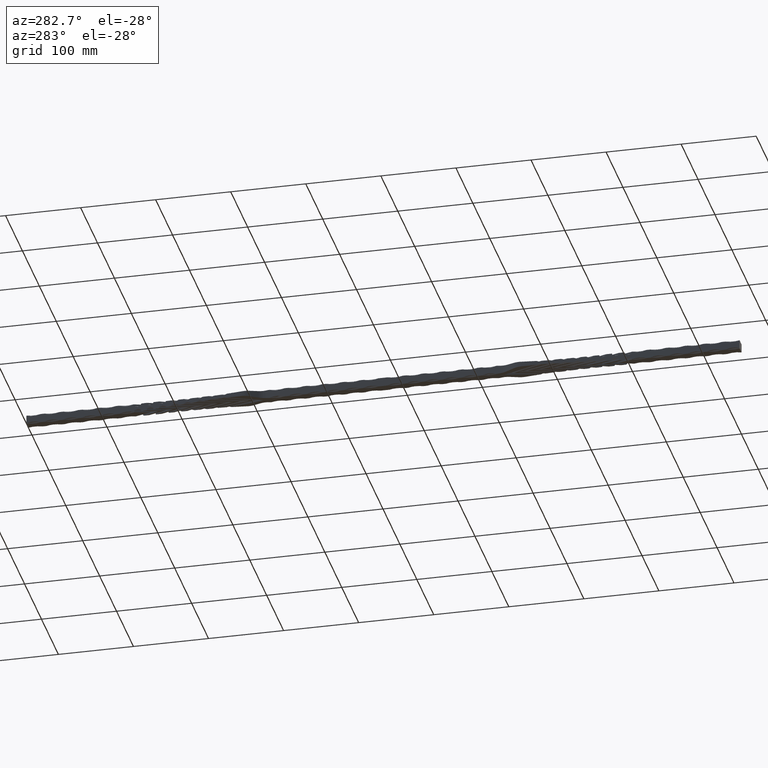
[diagram: clean part render]
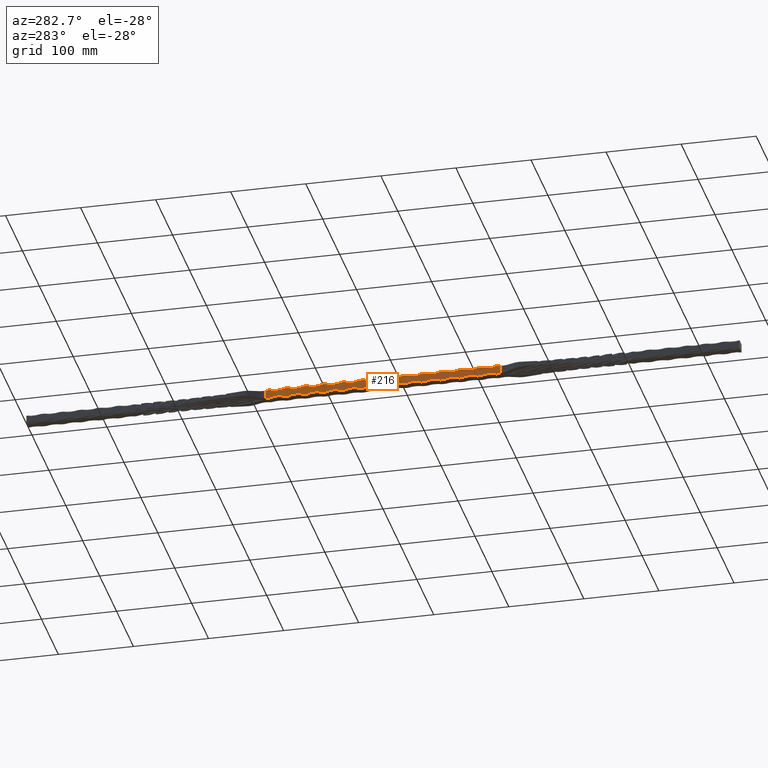
[diagram: same view with one face highlighted and labeled with its STEP entity id]
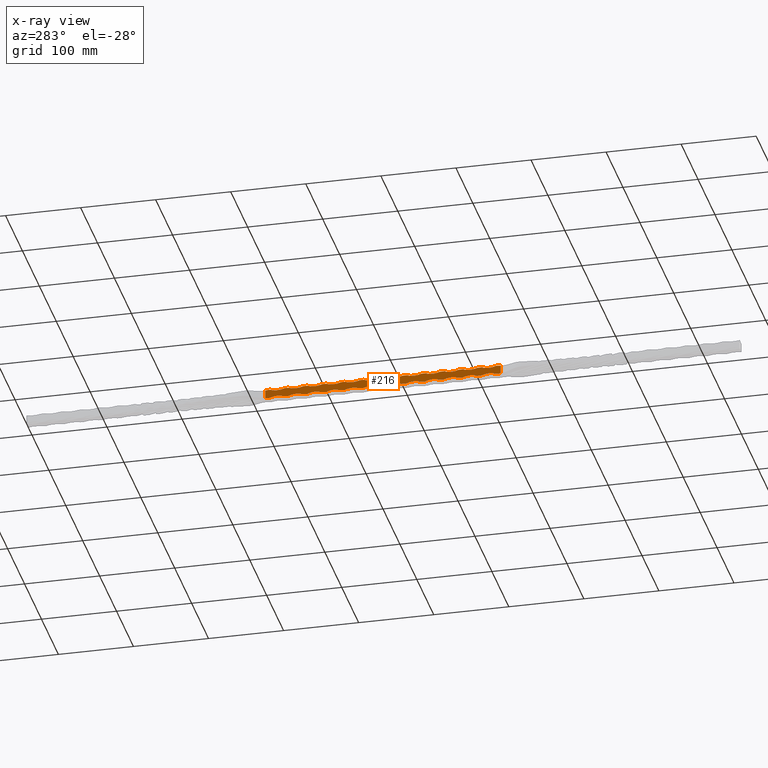
[diagram: x-ray of the same camera — body ghosted, the highlighted face saturated]
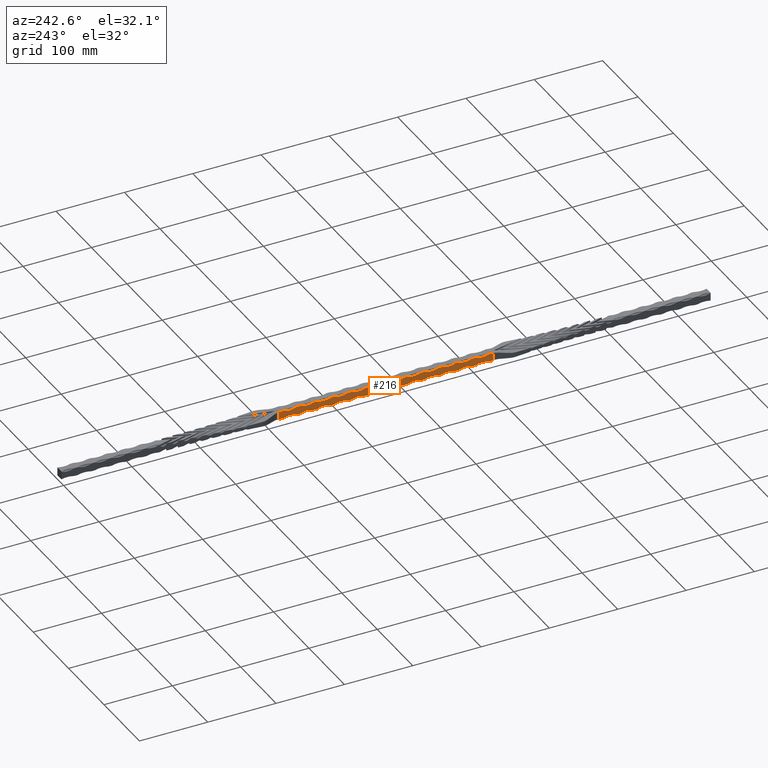
[diagram: same view with one face highlighted and labeled with its STEP entity id]
A machine part, auxiliary view. The second image highlights one B-rep face of the part: STEP entity #216.
The next image is the same camera in x-ray: the body ghosted, the highlighted face saturated — about 0% of this face is hidden behind the body in this view.
A second angle (auxiliary view) of the same face is appended — the face is thin or edge-on in the first view.
In plain terms, the highlighted planar face has unit normal (1, 0, -0).
Its self-contained STEP definition (entity closure, byte-faithful):
#44 = ORIENTED_EDGE ( 'NONE', *, *, #33351, .F. ) ;
#108 = DIRECTION ( 'NONE',  ( -1.000000000000000000, -0.000000000000000000, -1.445602896647339410E-16 ) ) ;
#201 = VERTEX_POINT ( 'NONE', #8883 ) ;
#216 = ADVANCED_FACE ( 'NONE', ( #1748 ), #5908, .F. ) ;
#230 = DIRECTION ( 'NONE',  ( -1.440896431496764621E-16, 0.000000000000000000, 1.000000000000000000 ) ) ;
#241 = VERTEX_POINT ( 'NONE', #9008 ) ;
#283 = VECTOR ( 'NONE', #11474, 1000.000000000000000 ) ;
#284 = DIRECTION ( 'NONE',  ( -1.000000000000000000, -0.000000000000000000, 1.445602896647339410E-16 ) ) ;
#314 = CARTESIAN_POINT ( 'NONE',  ( -5.999999999999998224, 531.0399999999999636, 5.999999999999999112 ) ) ;
#319 = LINE ( 'NONE', #2899, #21761 ) ;
#478 = CIRCLE ( 'NONE', #21364, 26.00000000000000711 ) ;
#542 = CARTESIAN_POINT ( 'NONE',  ( -6.000000000000001776, 657.0799999999999272, -5.999999999999170441 ) ) ;
#636 = CARTESIAN_POINT ( 'NONE',  ( -5.999999999999998224, 531.0399999999999636, -5.999999999999999112 ) ) ;
#655 = VECTOR ( 'NONE', #32901, 1000.000000000000000 ) ;
#663 = AXIS2_PLACEMENT_3D ( 'NONE', #2668, #17138, #19885 ) ;
#914 = VERTEX_POINT ( 'NONE', #27845 ) ;
#944 = EDGE_CURVE ( 'NONE', #30580, #35681, #319, .T. ) ;
#975 = ORIENTED_EDGE ( 'NONE', *, *, #15747, .F. ) ;
#1005 = DIRECTION ( 'NONE',  ( 1.000000000000000000, 0.000000000000000000, -1.445602896647339410E-16 ) ) ;
#1009 = EDGE_CURVE ( 'NONE', #19629, #6293, #3938, .T. ) ;
#1151 = DIRECTION ( 'NONE',  ( -1.000000000000000000, -0.000000000000000000, 1.445602896647339410E-16 ) ) ;
#1300 = EDGE_CURVE ( 'NONE', #11902, #13717, #29770, .T. ) ;
#1317 = LINE ( 'NONE', #2646, #28523 ) ;
#1373 = EDGE_CURVE ( 'NONE', #17051, #32781, #28448, .T. ) ;
#1446 = VECTOR ( 'NONE', #27926, 1000.000000000000000 ) ;
#1519 = CARTESIAN_POINT ( 'NONE',  ( -6.000000000000001776, 505.0000000000000000, 5.999999999998961719 ) ) ;
#1736 = DIRECTION ( 'NONE',  ( -1.334402673828312846E-16, 0.000000000000000000, -1.000000000000000000 ) ) ;
#1748 = FACE_OUTER_BOUND ( 'NONE', #24152, .T. ) ;
#1795 = DIRECTION ( 'NONE',  ( -1.334402673828312846E-16, 0.000000000000000000, 1.000000000000000000 ) ) ;
#1806 = EDGE_CURVE ( 'NONE', #26964, #20268, #28883, .T. ) ;
#2157 = ORIENTED_EDGE ( 'NONE', *, *, #21630, .T. ) ;
#2250 = EDGE_CURVE ( 'NONE', #14305, #32589, #33758, .T. ) ;
#2293 = CARTESIAN_POINT ( 'NONE',  ( -6.000000000000001776, 505.0000000000000000, -5.999999999998961719 ) ) ;
#2504 = CARTESIAN_POINT ( 'NONE',  ( -6.000000000000000000, 684.0696371787469161, -5.846788709385708493 ) ) ;
#2612 = DIRECTION ( 'NONE',  ( -1.445602896647339163E-16, 0.000000000000000000, -1.000000000000000000 ) ) ;
#2621 = DIRECTION ( 'NONE',  ( -1.334402673828312846E-16, 0.000000000000000000, -1.000000000000000000 ) ) ;
#2645 = LINE ( 'NONE', #636, #5343 ) ;
#2646 = CARTESIAN_POINT ( 'NONE',  ( -5.999999999999998224, 531.0399999999999636, -5.999999999999999112 ) ) ;
#2668 = CARTESIAN_POINT ( 'NONE',  ( -5.999999999999998224, 572.0799999999999272, 29.99999999999903011 ) ) ;
#2849 = CARTESIAN_POINT ( 'NONE',  ( -5.999999999999998224, 490.0000000000000568, -29.99999999999903011 ) ) ;
#2852 = CIRCLE ( 'NONE', #33058, 30.00000000000000000 ) ;
#2857 = DIRECTION ( 'NONE',  ( 0.000000000000000000, 1.000000000000000000, 0.000000000000000000 ) ) ;
#2886 = CARTESIAN_POINT ( 'NONE',  ( -5.999999999999998224, 572.0799999999999272, -29.99999999999903011 ) ) ;
#2899 = CARTESIAN_POINT ( 'NONE',  ( -5.999999999999998224, 531.0399999999999636, -5.999999999999999112 ) ) ;
#3035 = CIRCLE ( 'NONE', #18848, 26.00000000000000711 ) ;
#3322 = EDGE_CURVE ( 'NONE', #20268, #15836, #31462, .T. ) ;
#3380 = ORIENTED_EDGE ( 'NONE', *, *, #34767, .T. ) ;
#3535 = ORIENTED_EDGE ( 'NONE', *, *, #10337, .T. ) ;
#3656 = AXIS2_PLACEMENT_3D ( 'NONE', #24741, #7910, #16617 ) ;
#3761 = ORIENTED_EDGE ( 'NONE', *, *, #35702, .F. ) ;
#3801 = VERTEX_POINT ( 'NONE', #8747 ) ;
#3835 = CARTESIAN_POINT ( 'NONE',  ( -6.000000000000001776, 405.0000000000000000, 5.999999999999170441 ) ) ;
#3857 = CARTESIAN_POINT ( 'NONE',  ( -5.999999999999998224, 531.0399999999999636, -5.999999999999999112 ) ) ;
#3938 = CIRCLE ( 'NONE', #30058, 26.00000000000000711 ) ;
#3961 = CARTESIAN_POINT ( 'NONE',  ( -6.000000000000005329, 681.0415678702127025, -24.00000000000002132 ) ) ;
#4172 = CARTESIAN_POINT ( 'NONE',  ( -6.000000000000001776, 500.0000000000024443, -6.000000000000012434 ) ) ;
#4265 = ORIENTED_EDGE ( 'NONE', *, *, #21116, .T. ) ;
#4337 = ORIENTED_EDGE ( 'NONE', *, *, #4867, .T. ) ;
#4354 = CARTESIAN_POINT ( 'NONE',  ( -6.000000000000005329, 381.0384321297871679, 24.00000000000002132 ) ) ;
#4384 = LINE ( 'NONE', #12487, #32024 ) ;
#4400 = ORIENTED_EDGE ( 'NONE', *, *, #32803, .F. ) ;
#4401 = AXIS2_PLACEMENT_3D ( 'NONE', #33227, #4673, #1795 ) ;
#4443 = CARTESIAN_POINT ( 'NONE',  ( -5.999999999999998224, 622.0799999999998136, -29.99999999999913669 ) ) ;
#4509 = AXIS2_PLACEMENT_3D ( 'NONE', #33944, #108, #230 ) ;
#4552 = CARTESIAN_POINT ( 'NONE',  ( -6.000000000000001776, 525.0000000000025011, 6.000000000000012434 ) ) ;
#4673 = DIRECTION ( 'NONE',  ( 1.000000000000000000, 0.000000000000000000, 1.445602896647339410E-16 ) ) ;
#4703 = EDGE_CURVE ( 'NONE', #11209, #914, #9049, .T. ) ;
#4714 = DIRECTION ( 'NONE',  ( -1.334402673828312846E-16, 0.000000000000000000, -1.000000000000000000 ) ) ;
#4723 = DIRECTION ( 'NONE',  ( -1.445602896647339163E-16, 0.000000000000000000, 1.000000000000000000 ) ) ;
#4762 = DIRECTION ( 'NONE',  ( -1.334402673828312846E-16, 0.000000000000000000, 1.000000000000000000 ) ) ;
#4867 = EDGE_CURVE ( 'NONE', #35474, #26964, #20222, .T. ) ;
#4875 = ORIENTED_EDGE ( 'NONE', *, *, #32161, .F. ) ;
#4936 = CIRCLE ( 'NONE', #4509, 601.9598071232721850 ) ;
#4974 = VERTEX_POINT ( 'NONE', #16060 ) ;
#5182 = CIRCLE ( 'NONE', #34005, 26.00000000000000711 ) ;
#5224 = DIRECTION ( 'NONE',  ( -1.334402673828312846E-16, 0.000000000000000000, 1.000000000000000000 ) ) ;
#5343 = VECTOR ( 'NONE', #35086, 1000.000000000000000 ) ;
#5359 = VERTEX_POINT ( 'NONE', #1519 ) ;
#5385 = ORIENTED_EDGE ( 'NONE', *, *, #6035, .T. ) ;
#5512 = ORIENTED_EDGE ( 'NONE', *, *, #2250, .F. ) ;
#5536 = LINE ( 'NONE', #12760, #6006 ) ;
#5669 = CARTESIAN_POINT ( 'NONE',  ( -5.999999999999998224, 390.0000000000000000, 29.99999999999923972 ) ) ;
#5672 = EDGE_CURVE ( 'NONE', #241, #6411, #29090, .T. ) ;
#5755 = DIRECTION ( 'NONE',  ( -1.334402673828312846E-16, 8.540177112501202215E-15, 1.000000000000000000 ) ) ;
#5859 = CARTESIAN_POINT ( 'NONE',  ( -6.000000000000005329, 381.0384321297871679, -24.00000000000002132 ) ) ;
#5908 = PLANE ( 'NONE',  #11907 ) ;
#5976 = ORIENTED_EDGE ( 'NONE', *, *, #11859, .F. ) ;
#6006 = VECTOR ( 'NONE', #18477, 1000.000000000000000 ) ;
#6035 = EDGE_CURVE ( 'NONE', #10006, #33248, #28669, .T. ) ;
#6272 = ORIENTED_EDGE ( 'NONE', *, *, #20305, .F. ) ;
#6293 = VERTEX_POINT ( 'NONE', #20416 ) ;
#6296 = EDGE_CURVE ( 'NONE', #30000, #11902, #10380, .T. ) ;
#6333 = CARTESIAN_POINT ( 'NONE',  ( -6.000000000000001776, 582.0799999999999272, 5.999999999999014122 ) ) ;
#6411 = VERTEX_POINT ( 'NONE', #13714 ) ;
#6444 = CIRCLE ( 'NONE', #31189, 26.00000000000000711 ) ;
#6474 = VERTEX_POINT ( 'NONE', #34386 ) ;
#6530 = AXIS2_PLACEMENT_3D ( 'NONE', #5859, #28178, #2612 ) ;
#6570 = CARTESIAN_POINT ( 'NONE',  ( -6.000000000000001776, 557.0799999999999272, -5.999999999998961719 ) ) ;
#6684 = DIRECTION ( 'NONE',  ( -0.000000000000000000, 1.000000000000000000, -0.000000000000000000 ) ) ;
#6694 = AXIS2_PLACEMENT_3D ( 'NONE', #33418, #10724, #27432 ) ;
#6754 = ORIENTED_EDGE ( 'NONE', *, *, #22425, .T. ) ;
#6798 = CARTESIAN_POINT ( 'NONE',  ( -6.000000000000001776, 557.0799999999999272, 5.999999999998961719 ) ) ;
#7024 = CARTESIAN_POINT ( 'NONE',  ( -6.000000000000001776, 607.0799999999998136, -5.999999999999065636 ) ) ;
#7132 = CARTESIAN_POINT ( 'NONE',  ( -5.999999999999998224, 415.0000000000000568, 29.99999999999918643 ) ) ;
#7155 = LINE ( 'NONE', #30020, #21002 ) ;
#7253 = DIRECTION ( 'NONE',  ( -1.334402673828312846E-16, 0.000000000000000000, 1.000000000000000000 ) ) ;
#7321 = VERTEX_POINT ( 'NONE', #18008 ) ;
#7363 = VERTEX_POINT ( 'NONE', #26962 ) ;
#7681 = CARTESIAN_POINT ( 'NONE',  ( -6.000000000000001776, 607.0799999999998136, 5.999999999999065636 ) ) ;
#7700 = DIRECTION ( 'NONE',  ( -1.334402673828312846E-16, 0.000000000000000000, -1.000000000000000000 ) ) ;
#7787 = LINE ( 'NONE', #21171, #655 ) ;
#7798 = ORIENTED_EDGE ( 'NONE', *, *, #30167, .F. ) ;
#7910 = DIRECTION ( 'NONE',  ( -1.000000000000000000, 0.000000000000000000, -1.445602896647339410E-16 ) ) ;
#7968 = ORIENTED_EDGE ( 'NONE', *, *, #27096, .F. ) ;
#8000 = DIRECTION ( 'NONE',  ( 1.000000000000000000, -0.000000000000000000, 1.445602896647339410E-16 ) ) ;
#8517 = CARTESIAN_POINT ( 'NONE',  ( -6.000000000000001776, 657.0799999999999272, 5.999999999999170441 ) ) ;
#8578 = VECTOR ( 'NONE', #14226, 1000.000000000000000 ) ;
#8683 = VECTOR ( 'NONE', #6684, 1000.000000000000000 ) ;
#8747 = CARTESIAN_POINT ( 'NONE',  ( -6.000000000000001776, 425.0000000000019895, -6.000000000000012434 ) ) ;
#8759 = DIRECTION ( 'NONE',  ( -1.000000000000000000, -0.000000000000000000, 1.445602896647339410E-16 ) ) ;
#8858 = ORIENTED_EDGE ( 'NONE', *, *, #16188, .T. ) ;
#8882 = AXIS2_PLACEMENT_3D ( 'NONE', #26331, #26212, #29107 ) ;
#8883 = CARTESIAN_POINT ( 'NONE',  ( -6.000000000000001776, 475.0000000000022737, -6.000000000000012434 ) ) ;
#8927 = CARTESIAN_POINT ( 'NONE',  ( -5.999999999999998224, 531.0399999999999636, -5.999999999999999112 ) ) ;
#8932 = EDGE_CURVE ( 'NONE', #28909, #16998, #22700, .T. ) ;
#8982 = CARTESIAN_POINT ( 'NONE',  ( -5.999999999999998224, 531.0399999999999636, 5.999999999999999112 ) ) ;
#8995 = ORIENTED_EDGE ( 'NONE', *, *, #944, .F. ) ;
#9008 = CARTESIAN_POINT ( 'NONE',  ( -6.000000000000000000, 378.0103628212529543, -5.846788709385708493 ) ) ;
#9018 = CIRCLE ( 'NONE', #31517, 26.00000000000000711 ) ;
#9049 = LINE ( 'NONE', #32951, #15306 ) ;
#9061 = DIRECTION ( 'NONE',  ( -0.000000000000000000, -1.000000000000000000, 0.000000000000000000 ) ) ;
#9205 = EDGE_CURVE ( 'NONE', #13336, #19629, #4384, .T. ) ;
#9495 = DIRECTION ( 'NONE',  ( -0.000000000000000000, -1.000000000000000000, -0.000000000000000000 ) ) ;
#9568 = CARTESIAN_POINT ( 'NONE',  ( -5.999999999999992895, 374.2926937765808475, -5.481267690345847932 ) ) ;
#9731 = EDGE_CURVE ( 'NONE', #17648, #6293, #24150, .T. ) ;
#9828 = VERTEX_POINT ( 'NONE', #30361 ) ;
#9833 = DIRECTION ( 'NONE',  ( -0.000000000000000000, 1.000000000000000000, -0.000000000000000000 ) ) ;
#9843 = CARTESIAN_POINT ( 'NONE',  ( -5.999999999999998224, 465.0000000000000000, -29.99999999999908340 ) ) ;
#9966 = DIRECTION ( 'NONE',  ( -1.334402673828312846E-16, 0.000000000000000000, 1.000000000000000000 ) ) ;
#9971 = EDGE_CURVE ( 'NONE', #3801, #15351, #35310, .T. ) ;
#10006 = VERTEX_POINT ( 'NONE', #25365 ) ;
#10049 = CARTESIAN_POINT ( 'NONE',  ( -5.999999999999998224, 490.0000000000000568, 29.99999999999903011 ) ) ;
#10270 = CARTESIAN_POINT ( 'NONE',  ( -5.999999999999998224, 440.0000000000000568, -29.99999999999913669 ) ) ;
#10337 = EDGE_CURVE ( 'NONE', #21407, #7363, #27705, .T. ) ;
#10380 = LINE ( 'NONE', #8927, #18837 ) ;
#10384 = CARTESIAN_POINT ( 'NONE',  ( -6.000000000000001776, 480.0000000000000568, 5.999999999999014122 ) ) ;
#10408 = VERTEX_POINT ( 'NONE', #10384 ) ;
#10611 = VERTEX_POINT ( 'NONE', #28834 ) ;
#10724 = DIRECTION ( 'NONE',  ( 1.000000000000000000, 0.000000000000000000, -1.445602896647339410E-16 ) ) ;
#10789 = DIRECTION ( 'NONE',  ( 1.445602896647339410E-16, 7.239911254239001197E-32, 1.000000000000000000 ) ) ;
#10874 = CIRCLE ( 'NONE', #25892, 26.00000000000000711 ) ;
#10884 = VECTOR ( 'NONE', #2857, 1000.000000000000000 ) ;
#10925 = DIRECTION ( 'NONE',  ( -1.334402673828312846E-16, 0.000000000000000000, 1.000000000000000000 ) ) ;
#11056 = CARTESIAN_POINT ( 'NONE',  ( -6.000000000000001776, 632.0799999999998136, 5.999999999999118039 ) ) ;
#11084 = EDGE_CURVE ( 'NONE', #10408, #14305, #27236, .T. ) ;
#11128 = ORIENTED_EDGE ( 'NONE', *, *, #9971, .T. ) ;
#11209 = VERTEX_POINT ( 'NONE', #3835 ) ;
#11261 = CARTESIAN_POINT ( 'NONE',  ( -5.999999999999998224, 531.0399999999999636, -5.999999999999999112 ) ) ;
#11347 = EDGE_CURVE ( 'NONE', #23695, #31137, #28094, .T. ) ;
#11404 = DIRECTION ( 'NONE',  ( 0.000000000000000000, 1.000000000000000000, 0.000000000000000000 ) ) ;
#11474 = DIRECTION ( 'NONE',  ( -0.000000000000000000, -1.000000000000000000, -0.000000000000000000 ) ) ;
#11484 = LINE ( 'NONE', #34443, #25724 ) ;
#11654 = VERTEX_POINT ( 'NONE', #11056 ) ;
#11739 = EDGE_CURVE ( 'NONE', #7321, #17648, #15187, .T. ) ;
#11752 = CARTESIAN_POINT ( 'NONE',  ( -6.000000000000001776, 537.0799999999974261, 6.000000000000012434 ) ) ;
#11859 = EDGE_CURVE ( 'NONE', #17804, #10408, #12063, .T. ) ;
#11902 = VERTEX_POINT ( 'NONE', #4172 ) ;
#11907 = AXIS2_PLACEMENT_3D ( 'NONE', #19873, #28855, #14616 ) ;
#12001 = DIRECTION ( 'NONE',  ( -0.000000000000000000, -1.000000000000000000, -0.000000000000000000 ) ) ;
#12063 = CIRCLE ( 'NONE', #35599, 26.00000000000000711 ) ;
#12102 = CARTESIAN_POINT ( 'NONE',  ( -5.999999999999998224, 647.0799999999999272, 29.99999999999918643 ) ) ;
#12198 = VECTOR ( 'NONE', #12001, 1000.000000000000000 ) ;
#12214 = ORIENTED_EDGE ( 'NONE', *, *, #34447, .F. ) ;
#12342 = CARTESIAN_POINT ( 'NONE',  ( -5.999999999999998224, 531.0399999999999636, -5.999999999999999112 ) ) ;
#12475 = CARTESIAN_POINT ( 'NONE',  ( -6.000000000000001776, 525.0000000000025011, -6.000000000000012434 ) ) ;
#12487 = CARTESIAN_POINT ( 'NONE',  ( -5.999999999999998224, 531.0399999999999636, 5.999999999999999112 ) ) ;
#12554 = DIRECTION ( 'NONE',  ( -1.000000000000000000, 0.000000000000000000, -1.445602896647339410E-16 ) ) ;
#12588 = DIRECTION ( 'NONE',  ( -0.000000000000000000, 1.000000000000000000, -0.000000000000000000 ) ) ;
#12639 = VERTEX_POINT ( 'NONE', #6570 ) ;
#12694 = EDGE_CURVE ( 'NONE', #7363, #3801, #28972, .T. ) ;
#12760 = CARTESIAN_POINT ( 'NONE',  ( -5.999999999999998224, 531.0399999999999636, -5.999999999999999112 ) ) ;
#12933 = CIRCLE ( 'NONE', #4401, 26.00000000000000711 ) ;
#13085 = DIRECTION ( 'NONE',  ( 1.000000000000000000, 0.000000000000000000, 1.445602896647339410E-16 ) ) ;
#13283 = ORIENTED_EDGE ( 'NONE', *, *, #12694, .T. ) ;
#13292 = EDGE_CURVE ( 'NONE', #32781, #5359, #3035, .T. ) ;
#13305 = VERTEX_POINT ( 'NONE', #28588 ) ;
#13336 = VERTEX_POINT ( 'NONE', #8517 ) ;
#13360 = DIRECTION ( 'NONE',  ( -1.440896431496764621E-16, 0.000000000000000000, 1.000000000000000000 ) ) ;
#13714 = CARTESIAN_POINT ( 'NONE',  ( -6.000000000000001776, 380.0399809717480366, -5.983380317852914132 ) ) ;
#13717 = VERTEX_POINT ( 'NONE', #17208 ) ;
#13775 = EDGE_CURVE ( 'NONE', #17407, #13336, #29795, .T. ) ;
#13862 = ORIENTED_EDGE ( 'NONE', *, *, #3322, .T. ) ;
#13903 = CIRCLE ( 'NONE', #29302, 26.00000000000000711 ) ;
#13937 = LINE ( 'NONE', #8982, #12198 ) ;
#14226 = DIRECTION ( 'NONE',  ( -0.000000000000000000, -1.000000000000000000, 0.000000000000000000 ) ) ;
#14235 = ORIENTED_EDGE ( 'NONE', *, *, #16866, .T. ) ;
#14236 = DIRECTION ( 'NONE',  ( -1.334402673828312846E-16, 0.000000000000000000, -1.000000000000000000 ) ) ;
#14298 = CARTESIAN_POINT ( 'NONE',  ( -6.000000000000001776, 455.0000000000000000, 5.999999999999065636 ) ) ;
#14305 = VERTEX_POINT ( 'NONE', #18024 ) ;
#14317 = CARTESIAN_POINT ( 'NONE',  ( -6.000000000000001776, 450.0000000000021600, -6.000000000000012434 ) ) ;
#14458 = DIRECTION ( 'NONE',  ( -1.334402673828312846E-16, 0.000000000000000000, -1.000000000000000000 ) ) ;
#14616 = DIRECTION ( 'NONE',  ( -1.445602896647339410E-16, 0.000000000000000000, -1.000000000000000000 ) ) ;
#14796 = CARTESIAN_POINT ( 'NONE',  ( -5.999999999999998224, 531.0399999999999636, -5.999999999999999112 ) ) ;
#14878 = CARTESIAN_POINT ( 'NONE',  ( -6.000000000000001776, 562.0799999999974261, 6.000000000000012434 ) ) ;
#14898 = AXIS2_PLACEMENT_3D ( 'NONE', #21442, #24336, #7253 ) ;
#14941 = AXIS2_PLACEMENT_3D ( 'NONE', #19472, #8000, #13360 ) ;
#14997 = EDGE_CURVE ( 'NONE', #13305, #15243, #5182, .T. ) ;
#15153 = CARTESIAN_POINT ( 'NONE',  ( -6.000000000000005329, 681.0415678702127025, 24.00000000000002132 ) ) ;
#15187 = CIRCLE ( 'NONE', #27440, 601.9598071232721850 ) ;
#15243 = VERTEX_POINT ( 'NONE', #20155 ) ;
#15293 = CARTESIAN_POINT ( 'NONE',  ( -5.999999999999998224, 531.0399999999999636, 5.999999999999999112 ) ) ;
#15306 = VECTOR ( 'NONE', #15612, 1000.000000000000000 ) ;
#15351 = VERTEX_POINT ( 'NONE', #35696 ) ;
#15432 = DIRECTION ( 'NONE',  ( -0.000000000000000000, -1.000000000000000000, 0.000000000000000000 ) ) ;
#15612 = DIRECTION ( 'NONE',  ( -0.000000000000000000, -1.000000000000000000, -0.000000000000000000 ) ) ;
#15650 = DIRECTION ( 'NONE',  ( -1.334402673828312846E-16, -8.540177112501202215E-15, 1.000000000000000000 ) ) ;
#15703 = VECTOR ( 'NONE', #24257, 1000.000000000000000 ) ;
#15747 = EDGE_CURVE ( 'NONE', #28909, #7321, #7787, .T. ) ;
#15836 = VERTEX_POINT ( 'NONE', #21532 ) ;
#15916 = DIRECTION ( 'NONE',  ( -1.334402673828312846E-16, 0.000000000000000000, 1.000000000000000000 ) ) ;
#16060 = CARTESIAN_POINT ( 'NONE',  ( -6.000000000000001776, 537.0799999999974261, -6.000000000000012434 ) ) ;
#16063 = CARTESIAN_POINT ( 'NONE',  ( -6.000000000000001776, 662.0799999999979946, 6.000000000000012434 ) ) ;
#16169 = CARTESIAN_POINT ( 'NONE',  ( -5.999999999999998224, 465.0000000000000000, 29.99999999999908340 ) ) ;
#16188 = EDGE_CURVE ( 'NONE', #16998, #6474, #2852, .T. ) ;
#16253 = ORIENTED_EDGE ( 'NONE', *, *, #32703, .T. ) ;
#16311 = VERTEX_POINT ( 'NONE', #32860 ) ;
#16456 = AXIS2_PLACEMENT_3D ( 'NONE', #4443, #33000, #15916 ) ;
#16591 = LINE ( 'NONE', #14796, #21483 ) ;
#16598 = CARTESIAN_POINT ( 'NONE',  ( -6.000000000000001776, 500.0000000000024443, 6.000000000000012434 ) ) ;
#16617 = DIRECTION ( 'NONE',  ( -1.334402673828312846E-16, 0.000000000000000000, 1.000000000000000000 ) ) ;
#16693 = ORIENTED_EDGE ( 'NONE', *, *, #20324, .T. ) ;
#16740 = LINE ( 'NONE', #33514, #21201 ) ;
#16866 = EDGE_CURVE ( 'NONE', #23656, #11654, #10874, .T. ) ;
#16998 = VERTEX_POINT ( 'NONE', #2504 ) ;
#17051 = VERTEX_POINT ( 'NONE', #11752 ) ;
#17068 = CARTESIAN_POINT ( 'NONE',  ( -5.999999999999998224, 531.0399999999999636, -5.999999999999999112 ) ) ;
#17138 = DIRECTION ( 'NONE',  ( 1.000000000000000000, 0.000000000000000000, -1.445602896647339410E-16 ) ) ;
#17159 = CARTESIAN_POINT ( 'NONE',  ( -6.000000000000001776, 632.0799999999998136, -5.999999999999118039 ) ) ;
#17208 = CARTESIAN_POINT ( 'NONE',  ( -6.000000000000001776, 480.0000000000000568, -5.999999999999014122 ) ) ;
#17253 = CARTESIAN_POINT ( 'NONE',  ( -6.000000000000001776, 582.0799999999999272, -5.999999999999014122 ) ) ;
#17407 = VERTEX_POINT ( 'NONE', #29013 ) ;
#17607 = DIRECTION ( 'NONE',  ( 1.000000000000000000, 0.000000000000000000, -1.445602896647339410E-16 ) ) ;
#17648 = VERTEX_POINT ( 'NONE', #25619 ) ;
#17804 = VERTEX_POINT ( 'NONE', #16598 ) ;
#17869 = CARTESIAN_POINT ( 'NONE',  ( -6.000000000000001776, 380.0399809717480366, 5.983380317852914132 ) ) ;
#17889 = EDGE_CURVE ( 'NONE', #15351, #10611, #31342, .T. ) ;
#17896 = ORIENTED_EDGE ( 'NONE', *, *, #11347, .T. ) ;
#17930 = LINE ( 'NONE', #32763, #34444 ) ;
#18008 = CARTESIAN_POINT ( 'NONE',  ( -5.999999999999992895, 687.7873062234190229, 5.481267690345847932 ) ) ;
#18024 = CARTESIAN_POINT ( 'NONE',  ( -6.000000000000001776, 475.0000000000022737, 6.000000000000012434 ) ) ;
#18150 = ORIENTED_EDGE ( 'NONE', *, *, #8932, .T. ) ;
#18151 = CARTESIAN_POINT ( 'NONE',  ( -5.999999999999992895, 687.7873062234190229, -5.481267690345847932 ) ) ;
#18395 = CARTESIAN_POINT ( 'NONE',  ( -5.999999999999998224, 672.0799999999999272, -29.99999999999923972 ) ) ;
#18477 = DIRECTION ( 'NONE',  ( 0.000000000000000000, 1.000000000000000000, 0.000000000000000000 ) ) ;
#18497 = EDGE_CURVE ( 'NONE', #35681, #18878, #13903, .T. ) ;
#18575 = AXIS2_PLACEMENT_3D ( 'NONE', #2849, #31162, #5224 ) ;
#18649 = AXIS2_PLACEMENT_3D ( 'NONE', #9843, #24406, #29785 ) ;
#18814 = DIRECTION ( 'NONE',  ( 1.000000000000000000, 0.000000000000000000, -1.445602896647339410E-16 ) ) ;
#18835 = ORIENTED_EDGE ( 'NONE', *, *, #21242, .T. ) ;
#18837 = VECTOR ( 'NONE', #9061, 1000.000000000000000 ) ;
#18848 = AXIS2_PLACEMENT_3D ( 'NONE', #22839, #8759, #14236 ) ;
#18878 = VERTEX_POINT ( 'NONE', #542 ) ;
#18943 = CIRCLE ( 'NONE', #24945, 26.00000000000000711 ) ;
#18951 = ORIENTED_EDGE ( 'NONE', *, *, #1373, .F. ) ;
#18975 = VERTEX_POINT ( 'NONE', #29128 ) ;
#18981 = ORIENTED_EDGE ( 'NONE', *, *, #11739, .F. ) ;
#19056 = CIRCLE ( 'NONE', #3656, 26.00000000000000711 ) ;
#19184 = ORIENTED_EDGE ( 'NONE', *, *, #1300, .T. ) ;
#19187 = ORIENTED_EDGE ( 'NONE', *, *, #33576, .F. ) ;
#19243 = CARTESIAN_POINT ( 'NONE',  ( -5.999999999999998224, 415.0000000000000568, -29.99999999999918643 ) ) ;
#19472 = CARTESIAN_POINT ( 'NONE',  ( -5.999999999999912959, 744.8288377427855949, -604.7323612010811758 ) ) ;
#19597 = ORIENTED_EDGE ( 'NONE', *, *, #9731, .F. ) ;
#19629 = VERTEX_POINT ( 'NONE', #16063 ) ;
#19873 = CARTESIAN_POINT ( 'NONE',  ( -6.000000000000000000, 531.0399999999999636, -6.000000000000000888 ) ) ;
#19885 = DIRECTION ( 'NONE',  ( -1.334402673828312846E-16, 8.540177112501202215E-15, -1.000000000000000000 ) ) ;
#19892 = ORIENTED_EDGE ( 'NONE', *, *, #26946, .T. ) ;
#20155 = CARTESIAN_POINT ( 'NONE',  ( -6.000000000000001776, 430.0000000000000568, 5.999999999999118039 ) ) ;
#20222 = LINE ( 'NONE', #27672, #1446 ) ;
#20268 = VERTEX_POINT ( 'NONE', #6333 ) ;
#20305 = EDGE_CURVE ( 'NONE', #23998, #30580, #25502, .T. ) ;
#20324 = EDGE_CURVE ( 'NONE', #11654, #17407, #17930, .T. ) ;
#20349 = AXIS2_PLACEMENT_3D ( 'NONE', #12102, #28934, #14458 ) ;
#20416 = CARTESIAN_POINT ( 'NONE',  ( -6.000000000000001776, 682.0400190282518906, 5.983380317852914132 ) ) ;
#20545 = CIRCLE ( 'NONE', #25211, 26.00000000000000711 ) ;
#20633 = ORIENTED_EDGE ( 'NONE', *, *, #28315, .F. ) ;
#20663 = VERTEX_POINT ( 'NONE', #7024 ) ;
#21002 = VECTOR ( 'NONE', #12588, 1000.000000000000000 ) ;
#21116 = EDGE_CURVE ( 'NONE', #17051, #35474, #478, .T. ) ;
#21171 = CARTESIAN_POINT ( 'NONE',  ( -5.999999999999998224, 687.7873062234191366, 6.000000000000002665 ) ) ;
#21201 = VECTOR ( 'NONE', #25383, 1000.000000000000000 ) ;
#21207 = ORIENTED_EDGE ( 'NONE', *, *, #13292, .F. ) ;
#21240 = DIRECTION ( 'NONE',  ( -1.334402673828312846E-16, 0.000000000000000000, -1.000000000000000000 ) ) ;
#21242 = EDGE_CURVE ( 'NONE', #15836, #30507, #20545, .T. ) ;
#21256 = DIRECTION ( 'NONE',  ( -1.000000000000000000, 0.000000000000000000, -1.445602896647339410E-16 ) ) ;
#21364 = AXIS2_PLACEMENT_3D ( 'NONE', #26691, #1005, #26444 ) ;
#21374 = CARTESIAN_POINT ( 'NONE',  ( -5.999999999999998224, 531.0399999999999636, -5.999999999999999112 ) ) ;
#21407 = VERTEX_POINT ( 'NONE', #14317 ) ;
#21442 = CARTESIAN_POINT ( 'NONE',  ( -5.999999999999998224, 547.0799999999999272, -29.99999999999898037 ) ) ;
#21483 = VECTOR ( 'NONE', #34765, 1000.000000000000000 ) ;
#21532 = CARTESIAN_POINT ( 'NONE',  ( -6.000000000000001776, 587.0799999999976535, 6.000000000000012434 ) ) ;
#21599 = EDGE_CURVE ( 'NONE', #30507, #23656, #7155, .T. ) ;
#21630 = EDGE_CURVE ( 'NONE', #4974, #30156, #25425, .T. ) ;
#21761 = VECTOR ( 'NONE', #34084, 1000.000000000000000 ) ;
#21878 = ORIENTED_EDGE ( 'NONE', *, *, #18497, .F. ) ;
#21934 = ORIENTED_EDGE ( 'NONE', *, *, #26313, .T. ) ;
#22114 = CARTESIAN_POINT ( 'NONE',  ( -5.999999999999998224, 374.2926937765807907, 6.000000000000002665 ) ) ;
#22425 = EDGE_CURVE ( 'NONE', #10611, #6411, #12933, .T. ) ;
#22700 = CIRCLE ( 'NONE', #14941, 601.9598071232721850 ) ;
#22824 = LINE ( 'NONE', #21374, #15703 ) ;
#22839 = CARTESIAN_POINT ( 'NONE',  ( -5.999999999999998224, 515.0000000000000000, 29.99999999999898037 ) ) ;
#22896 = AXIS2_PLACEMENT_3D ( 'NONE', #16169, #24788, #7700 ) ;
#23100 = ORIENTED_EDGE ( 'NONE', *, *, #5672, .F. ) ;
#23656 = VERTEX_POINT ( 'NONE', #29747 ) ;
#23695 = VERTEX_POINT ( 'NONE', #9568 ) ;
#23754 = ORIENTED_EDGE ( 'NONE', *, *, #6296, .T. ) ;
#23889 = DIRECTION ( 'NONE',  ( 1.000000000000000000, 0.000000000000000000, -1.445602896647339410E-16 ) ) ;
#23998 = VERTEX_POINT ( 'NONE', #32836 ) ;
#24035 = CIRCLE ( 'NONE', #6694, 601.9598071232721850 ) ;
#24150 = CIRCLE ( 'NONE', #34337, 30.00000000000000000 ) ;
#24152 = EDGE_LOOP ( 'NONE', ( #3380, #5385, #28785, #28399, #44, #4875, #31890, #24500, #5512, #29409, #5976, #26985, #21207, #18951, #4265, #4337, #28798, #13862, #18835, #31270, #14235, #16693, #32724, #31336, #26838, #19597, #18981, #975, #18150, #8858, #29699, #12214, #21878, #8995, #6272, #7798, #3761, #4400, #25993, #7968, #20633, #2157, #19892, #23754, #19184, #31753, #21934, #16253, #3535, #13283, #11128, #24939, #6754, #23100, #19187, #17896 ) ) ;
#24257 = DIRECTION ( 'NONE',  ( 0.000000000000000000, 1.000000000000000000, 0.000000000000000000 ) ) ;
#24326 = EDGE_CURVE ( 'NONE', #32589, #13305, #11484, .T. ) ;
#24336 = DIRECTION ( 'NONE',  ( -1.000000000000000000, 0.000000000000000000, -1.445602896647339410E-16 ) ) ;
#24406 = DIRECTION ( 'NONE',  ( 1.000000000000000000, 0.000000000000000000, 1.445602896647339410E-16 ) ) ;
#24500 = ORIENTED_EDGE ( 'NONE', *, *, #24326, .F. ) ;
#24741 = CARTESIAN_POINT ( 'NONE',  ( -5.999999999999998224, 597.0799999999998136, -29.99999999999908340 ) ) ;
#24788 = DIRECTION ( 'NONE',  ( -1.000000000000000000, -0.000000000000000000, 1.445602896647339410E-16 ) ) ;
#24926 = AXIS2_PLACEMENT_3D ( 'NONE', #4354, #13085, #4723 ) ;
#24939 = ORIENTED_EDGE ( 'NONE', *, *, #17889, .T. ) ;
#24945 = AXIS2_PLACEMENT_3D ( 'NONE', #5669, #1151, #32099 ) ;
#25211 = AXIS2_PLACEMENT_3D ( 'NONE', #35942, #18814, #1736 ) ;
#25365 = CARTESIAN_POINT ( 'NONE',  ( -6.000000000000000000, 378.0103628212529543, 5.846788709385708493 ) ) ;
#25383 = DIRECTION ( 'NONE',  ( -0.000000000000000000, -1.000000000000000000, -0.000000000000000000 ) ) ;
#25425 = LINE ( 'NONE', #3857, #32571 ) ;
#25430 = DIRECTION ( 'NONE',  ( 1.000000000000000000, 0.000000000000000000, -1.445602896647339410E-16 ) ) ;
#25494 = CARTESIAN_POINT ( 'NONE',  ( -5.999999999999912959, 744.8288377427855949, 604.7323612010811758 ) ) ;
#25502 = CIRCLE ( 'NONE', #16456, 26.00000000000000711 ) ;
#25619 = CARTESIAN_POINT ( 'NONE',  ( -6.000000000000000000, 684.0696371787469161, 5.846788709385708493 ) ) ;
#25724 = VECTOR ( 'NONE', #9495, 1000.000000000000000 ) ;
#25741 = AXIS2_PLACEMENT_3D ( 'NONE', #10270, #27833, #4762 ) ;
#25892 = AXIS2_PLACEMENT_3D ( 'NONE', #34191, #25430, #2621 ) ;
#25893 = CARTESIAN_POINT ( 'NONE',  ( -5.999999999999998224, 531.0399999999999636, 5.999999999999999112 ) ) ;
#25908 = CARTESIAN_POINT ( 'NONE',  ( -6.000000000000001776, 455.0000000000000000, -5.999999999999065636 ) ) ;
#25993 = ORIENTED_EDGE ( 'NONE', *, *, #29743, .F. ) ;
#26212 = DIRECTION ( 'NONE',  ( 1.000000000000000000, 0.000000000000000000, 1.445602896647339410E-16 ) ) ;
#26313 = EDGE_CURVE ( 'NONE', #201, #34988, #33259, .T. ) ;
#26331 = CARTESIAN_POINT ( 'NONE',  ( -5.999999999999998224, 515.0000000000000000, -29.99999999999898037 ) ) ;
#26444 = DIRECTION ( 'NONE',  ( -1.334402673828312846E-16, 0.000000000000000000, -1.000000000000000000 ) ) ;
#26691 = CARTESIAN_POINT ( 'NONE',  ( -5.999999999999998224, 547.0799999999999272, 29.99999999999898037 ) ) ;
#26838 = ORIENTED_EDGE ( 'NONE', *, *, #1009, .T. ) ;
#26946 = EDGE_CURVE ( 'NONE', #30156, #30000, #33221, .T. ) ;
#26962 = CARTESIAN_POINT ( 'NONE',  ( -6.000000000000001776, 430.0000000000000568, -5.999999999999118039 ) ) ;
#26964 = VERTEX_POINT ( 'NONE', #14878 ) ;
#26985 = ORIENTED_EDGE ( 'NONE', *, *, #28768, .F. ) ;
#27000 = DIRECTION ( 'NONE',  ( -0.000000000000000000, -1.000000000000000000, -0.000000000000000000 ) ) ;
#27096 = EDGE_CURVE ( 'NONE', #12639, #9828, #5536, .T. ) ;
#27236 = LINE ( 'NONE', #15293, #33040 ) ;
#27364 = LINE ( 'NONE', #17068, #10884 ) ;
#27386 = AXIS2_PLACEMENT_3D ( 'NONE', #19243, #33757, #10925 ) ;
#27432 = DIRECTION ( 'NONE',  ( -1.440896431496764621E-16, 0.000000000000000000, -1.000000000000000000 ) ) ;
#27440 = AXIS2_PLACEMENT_3D ( 'NONE', #25494, #284, #31372 ) ;
#27672 = CARTESIAN_POINT ( 'NONE',  ( -5.999999999999998224, 531.0399999999999636, 5.999999999999999112 ) ) ;
#27705 = CIRCLE ( 'NONE', #25741, 26.00000000000000711 ) ;
#27833 = DIRECTION ( 'NONE',  ( 1.000000000000000000, 0.000000000000000000, 1.445602896647339410E-16 ) ) ;
#27845 = CARTESIAN_POINT ( 'NONE',  ( -6.000000000000001776, 400.0000000000018758, 6.000000000000012434 ) ) ;
#27926 = DIRECTION ( 'NONE',  ( -0.000000000000000000, 1.000000000000000000, -0.000000000000000000 ) ) ;
#27983 = CARTESIAN_POINT ( 'NONE',  ( -6.000000000000001776, 637.0799999999978809, -6.000000000000012434 ) ) ;
#28094 = LINE ( 'NONE', #22114, #34804 ) ;
#28178 = DIRECTION ( 'NONE',  ( -1.000000000000000000, -0.000000000000000000, 1.445602896647339410E-16 ) ) ;
#28315 = EDGE_CURVE ( 'NONE', #4974, #12639, #34656, .T. ) ;
#28399 = ORIENTED_EDGE ( 'NONE', *, *, #4703, .F. ) ;
#28448 = LINE ( 'NONE', #25893, #283 ) ;
#28523 = VECTOR ( 'NONE', #11404, 1000.000000000000000 ) ;
#28588 = CARTESIAN_POINT ( 'NONE',  ( -6.000000000000001776, 450.0000000000021600, 6.000000000000012434 ) ) ;
#28669 = CIRCLE ( 'NONE', #6530, 30.00000000000000000 ) ;
#28768 = EDGE_CURVE ( 'NONE', #5359, #17804, #16740, .T. ) ;
#28785 = ORIENTED_EDGE ( 'NONE', *, *, #29250, .F. ) ;
#28798 = ORIENTED_EDGE ( 'NONE', *, *, #1806, .T. ) ;
#28834 = CARTESIAN_POINT ( 'NONE',  ( -6.000000000000001776, 400.0000000000018758, -6.000000000000012434 ) ) ;
#28855 = DIRECTION ( 'NONE',  ( 1.000000000000000000, 0.000000000000000000, -1.445602896647339410E-16 ) ) ;
#28883 = CIRCLE ( 'NONE', #663, 26.00000000000000711 ) ;
#28892 = AXIS2_PLACEMENT_3D ( 'NONE', #7132, #30194, #33192 ) ;
#28909 = VERTEX_POINT ( 'NONE', #18151 ) ;
#28934 = DIRECTION ( 'NONE',  ( 1.000000000000000000, 0.000000000000000000, -1.445602896647339410E-16 ) ) ;
#28972 = LINE ( 'NONE', #12342, #35211 ) ;
#29013 = CARTESIAN_POINT ( 'NONE',  ( -6.000000000000001776, 637.0799999999978809, 6.000000000000012434 ) ) ;
#29090 = CIRCLE ( 'NONE', #24926, 30.00000000000000000 ) ;
#29107 = DIRECTION ( 'NONE',  ( -1.334402673828312846E-16, 0.000000000000000000, 1.000000000000000000 ) ) ;
#29128 = CARTESIAN_POINT ( 'NONE',  ( -6.000000000000001776, 425.0000000000019895, 6.000000000000012434 ) ) ;
#29250 = EDGE_CURVE ( 'NONE', #914, #33248, #18943, .T. ) ;
#29302 = AXIS2_PLACEMENT_3D ( 'NONE', #30138, #32410, #9966 ) ;
#29409 = ORIENTED_EDGE ( 'NONE', *, *, #11084, .F. ) ;
#29449 = DIRECTION ( 'NONE',  ( -1.334402673828312846E-16, -8.540177112501202215E-15, -1.000000000000000000 ) ) ;
#29524 = DIRECTION ( 'NONE',  ( -1.445602896647339163E-16, 1.850371707708594129E-14, -1.000000000000000000 ) ) ;
#29587 = CARTESIAN_POINT ( 'NONE',  ( -5.999999999999992895, 374.2926937765808475, 5.481267690345847932 ) ) ;
#29699 = ORIENTED_EDGE ( 'NONE', *, *, #32799, .F. ) ;
#29743 = EDGE_CURVE ( 'NONE', #9828, #35795, #6444, .T. ) ;
#29747 = CARTESIAN_POINT ( 'NONE',  ( -6.000000000000001776, 612.0799999999977672, 6.000000000000012434 ) ) ;
#29770 = CIRCLE ( 'NONE', #18575, 26.00000000000000711 ) ;
#29785 = DIRECTION ( 'NONE',  ( -1.334402673828312846E-16, 0.000000000000000000, 1.000000000000000000 ) ) ;
#29795 = CIRCLE ( 'NONE', #20349, 26.00000000000000711 ) ;
#30000 = VERTEX_POINT ( 'NONE', #2293 ) ;
#30020 = CARTESIAN_POINT ( 'NONE',  ( -5.999999999999998224, 531.0399999999999636, 5.999999999999999112 ) ) ;
#30058 = AXIS2_PLACEMENT_3D ( 'NONE', #34816, #17607, #29449 ) ;
#30138 = CARTESIAN_POINT ( 'NONE',  ( -5.999999999999998224, 647.0799999999999272, -29.99999999999918643 ) ) ;
#30156 = VERTEX_POINT ( 'NONE', #12475 ) ;
#30167 = EDGE_CURVE ( 'NONE', #20663, #23998, #27364, .T. ) ;
#30194 = DIRECTION ( 'NONE',  ( -1.000000000000000000, -0.000000000000000000, 1.445602896647339410E-16 ) ) ;
#30361 = CARTESIAN_POINT ( 'NONE',  ( -6.000000000000001776, 562.0799999999974261, -6.000000000000012434 ) ) ;
#30507 = VERTEX_POINT ( 'NONE', #7681 ) ;
#30580 = VERTEX_POINT ( 'NONE', #17159 ) ;
#31137 = VERTEX_POINT ( 'NONE', #29587 ) ;
#31162 = DIRECTION ( 'NONE',  ( 1.000000000000000000, 0.000000000000000000, 1.445602896647339410E-16 ) ) ;
#31189 = AXIS2_PLACEMENT_3D ( 'NONE', #2886, #36820, #5755 ) ;
#31270 = ORIENTED_EDGE ( 'NONE', *, *, #21599, .T. ) ;
#31336 = ORIENTED_EDGE ( 'NONE', *, *, #9205, .T. ) ;
#31342 = LINE ( 'NONE', #11261, #8578 ) ;
#31372 = DIRECTION ( 'NONE',  ( -1.440896431496764621E-16, 0.000000000000000000, -1.000000000000000000 ) ) ;
#31462 = LINE ( 'NONE', #314, #8683 ) ;
#31517 = AXIS2_PLACEMENT_3D ( 'NONE', #18395, #21256, #15650 ) ;
#31753 = ORIENTED_EDGE ( 'NONE', *, *, #34561, .T. ) ;
#31890 = ORIENTED_EDGE ( 'NONE', *, *, #14997, .F. ) ;
#32024 = VECTOR ( 'NONE', #35070, 1000.000000000000000 ) ;
#32099 = DIRECTION ( 'NONE',  ( -1.334402673828312846E-16, 0.000000000000000000, -1.000000000000000000 ) ) ;
#32161 = EDGE_CURVE ( 'NONE', #15243, #18975, #13937, .T. ) ;
#32410 = DIRECTION ( 'NONE',  ( -1.000000000000000000, 0.000000000000000000, -1.445602896647339410E-16 ) ) ;
#32517 = VERTEX_POINT ( 'NONE', #36908 ) ;
#32527 = DIRECTION ( 'NONE',  ( -0.000000000000000000, -1.000000000000000000, 0.000000000000000000 ) ) ;
#32571 = VECTOR ( 'NONE', #32527, 1000.000000000000000 ) ;
#32589 = VERTEX_POINT ( 'NONE', #14298 ) ;
#32703 = EDGE_CURVE ( 'NONE', #34988, #21407, #16591, .T. ) ;
#32724 = ORIENTED_EDGE ( 'NONE', *, *, #13775, .T. ) ;
#32763 = CARTESIAN_POINT ( 'NONE',  ( -5.999999999999998224, 531.0399999999999636, 5.999999999999999112 ) ) ;
#32781 = VERTEX_POINT ( 'NONE', #4552 ) ;
#32799 = EDGE_CURVE ( 'NONE', #16311, #6474, #9018, .T. ) ;
#32803 = EDGE_CURVE ( 'NONE', #35795, #32517, #22824, .T. ) ;
#32836 = CARTESIAN_POINT ( 'NONE',  ( -6.000000000000001776, 612.0799999999977672, -6.000000000000012434 ) ) ;
#32860 = CARTESIAN_POINT ( 'NONE',  ( -6.000000000000001776, 662.0799999999979946, -6.000000000000012434 ) ) ;
#32901 = DIRECTION ( 'NONE',  ( 1.445602896647339410E-16, -7.239911254239001197E-32, 1.000000000000000000 ) ) ;
#32951 = CARTESIAN_POINT ( 'NONE',  ( -5.999999999999998224, 531.0399999999999636, 5.999999999999999112 ) ) ;
#33000 = DIRECTION ( 'NONE',  ( -1.000000000000000000, 0.000000000000000000, -1.445602896647339410E-16 ) ) ;
#33040 = VECTOR ( 'NONE', #27000, 1000.000000000000000 ) ;
#33058 = AXIS2_PLACEMENT_3D ( 'NONE', #15153, #12554, #34751 ) ;
#33192 = DIRECTION ( 'NONE',  ( -1.334402673828312846E-16, 0.000000000000000000, -1.000000000000000000 ) ) ;
#33221 = CIRCLE ( 'NONE', #8882, 26.00000000000000711 ) ;
#33227 = CARTESIAN_POINT ( 'NONE',  ( -5.999999999999998224, 390.0000000000000000, -29.99999999999923972 ) ) ;
#33248 = VERTEX_POINT ( 'NONE', #17869 ) ;
#33259 = CIRCLE ( 'NONE', #18649, 26.00000000000000711 ) ;
#33351 = EDGE_CURVE ( 'NONE', #18975, #11209, #35760, .T. ) ;
#33418 = CARTESIAN_POINT ( 'NONE',  ( -5.999999999999912959, 317.2511622572142755, 604.7323612010811758 ) ) ;
#33514 = CARTESIAN_POINT ( 'NONE',  ( -5.999999999999998224, 531.0399999999999636, 5.999999999999999112 ) ) ;
#33576 = EDGE_CURVE ( 'NONE', #23695, #241, #4936, .T. ) ;
#33649 = DIRECTION ( 'NONE',  ( -1.000000000000000000, -0.000000000000000000, 1.445602896647339410E-16 ) ) ;
#33757 = DIRECTION ( 'NONE',  ( 1.000000000000000000, 0.000000000000000000, 1.445602896647339410E-16 ) ) ;
#33758 = CIRCLE ( 'NONE', #22896, 26.00000000000000711 ) ;
#33944 = CARTESIAN_POINT ( 'NONE',  ( -5.999999999999912959, 317.2511622572142755, -604.7323612010811758 ) ) ;
#34005 = AXIS2_PLACEMENT_3D ( 'NONE', #36520, #33649, #4714 ) ;
#34084 = DIRECTION ( 'NONE',  ( 0.000000000000000000, 1.000000000000000000, 0.000000000000000000 ) ) ;
#34191 = CARTESIAN_POINT ( 'NONE',  ( -5.999999999999998224, 622.0799999999998136, 29.99999999999913669 ) ) ;
#34337 = AXIS2_PLACEMENT_3D ( 'NONE', #3961, #23889, #29524 ) ;
#34386 = CARTESIAN_POINT ( 'NONE',  ( -6.000000000000001776, 682.0400190282518906, -5.983380317852914132 ) ) ;
#34443 = CARTESIAN_POINT ( 'NONE',  ( -5.999999999999998224, 531.0399999999999636, 5.999999999999999112 ) ) ;
#34444 = VECTOR ( 'NONE', #9833, 1000.000000000000000 ) ;
#34447 = EDGE_CURVE ( 'NONE', #18878, #16311, #1317, .T. ) ;
#34561 = EDGE_CURVE ( 'NONE', #13717, #201, #2645, .T. ) ;
#34656 = CIRCLE ( 'NONE', #14898, 26.00000000000000711 ) ;
#34751 = DIRECTION ( 'NONE',  ( -1.445602896647339163E-16, 1.850371707708594129E-14, 1.000000000000000000 ) ) ;
#34765 = DIRECTION ( 'NONE',  ( -0.000000000000000000, -1.000000000000000000, 0.000000000000000000 ) ) ;
#34767 = EDGE_CURVE ( 'NONE', #31137, #10006, #24035, .T. ) ;
#34804 = VECTOR ( 'NONE', #10789, 1000.000000000000000 ) ;
#34816 = CARTESIAN_POINT ( 'NONE',  ( -5.999999999999998224, 672.0799999999999272, 29.99999999999923972 ) ) ;
#34988 = VERTEX_POINT ( 'NONE', #25908 ) ;
#35070 = DIRECTION ( 'NONE',  ( -0.000000000000000000, 1.000000000000000000, -0.000000000000000000 ) ) ;
#35086 = DIRECTION ( 'NONE',  ( -0.000000000000000000, -1.000000000000000000, 0.000000000000000000 ) ) ;
#35211 = VECTOR ( 'NONE', #15432, 1000.000000000000000 ) ;
#35310 = CIRCLE ( 'NONE', #27386, 26.00000000000000711 ) ;
#35474 = VERTEX_POINT ( 'NONE', #6798 ) ;
#35485 = DIRECTION ( 'NONE',  ( -1.000000000000000000, -0.000000000000000000, 1.445602896647339410E-16 ) ) ;
#35599 = AXIS2_PLACEMENT_3D ( 'NONE', #10049, #35485, #21240 ) ;
#35681 = VERTEX_POINT ( 'NONE', #27983 ) ;
#35696 = CARTESIAN_POINT ( 'NONE',  ( -6.000000000000001776, 405.0000000000000000, -5.999999999999170441 ) ) ;
#35702 = EDGE_CURVE ( 'NONE', #32517, #20663, #19056, .T. ) ;
#35760 = CIRCLE ( 'NONE', #28892, 26.00000000000000711 ) ;
#35795 = VERTEX_POINT ( 'NONE', #17253 ) ;
#35942 = CARTESIAN_POINT ( 'NONE',  ( -5.999999999999998224, 597.0799999999998136, 29.99999999999908340 ) ) ;
#36520 = CARTESIAN_POINT ( 'NONE',  ( -5.999999999999998224, 440.0000000000000568, 29.99999999999913669 ) ) ;
#36820 = DIRECTION ( 'NONE',  ( -1.000000000000000000, 0.000000000000000000, -1.445602896647339410E-16 ) ) ;
#36908 = CARTESIAN_POINT ( 'NONE',  ( -6.000000000000001776, 587.0799999999976535, -6.000000000000012434 ) ) ;